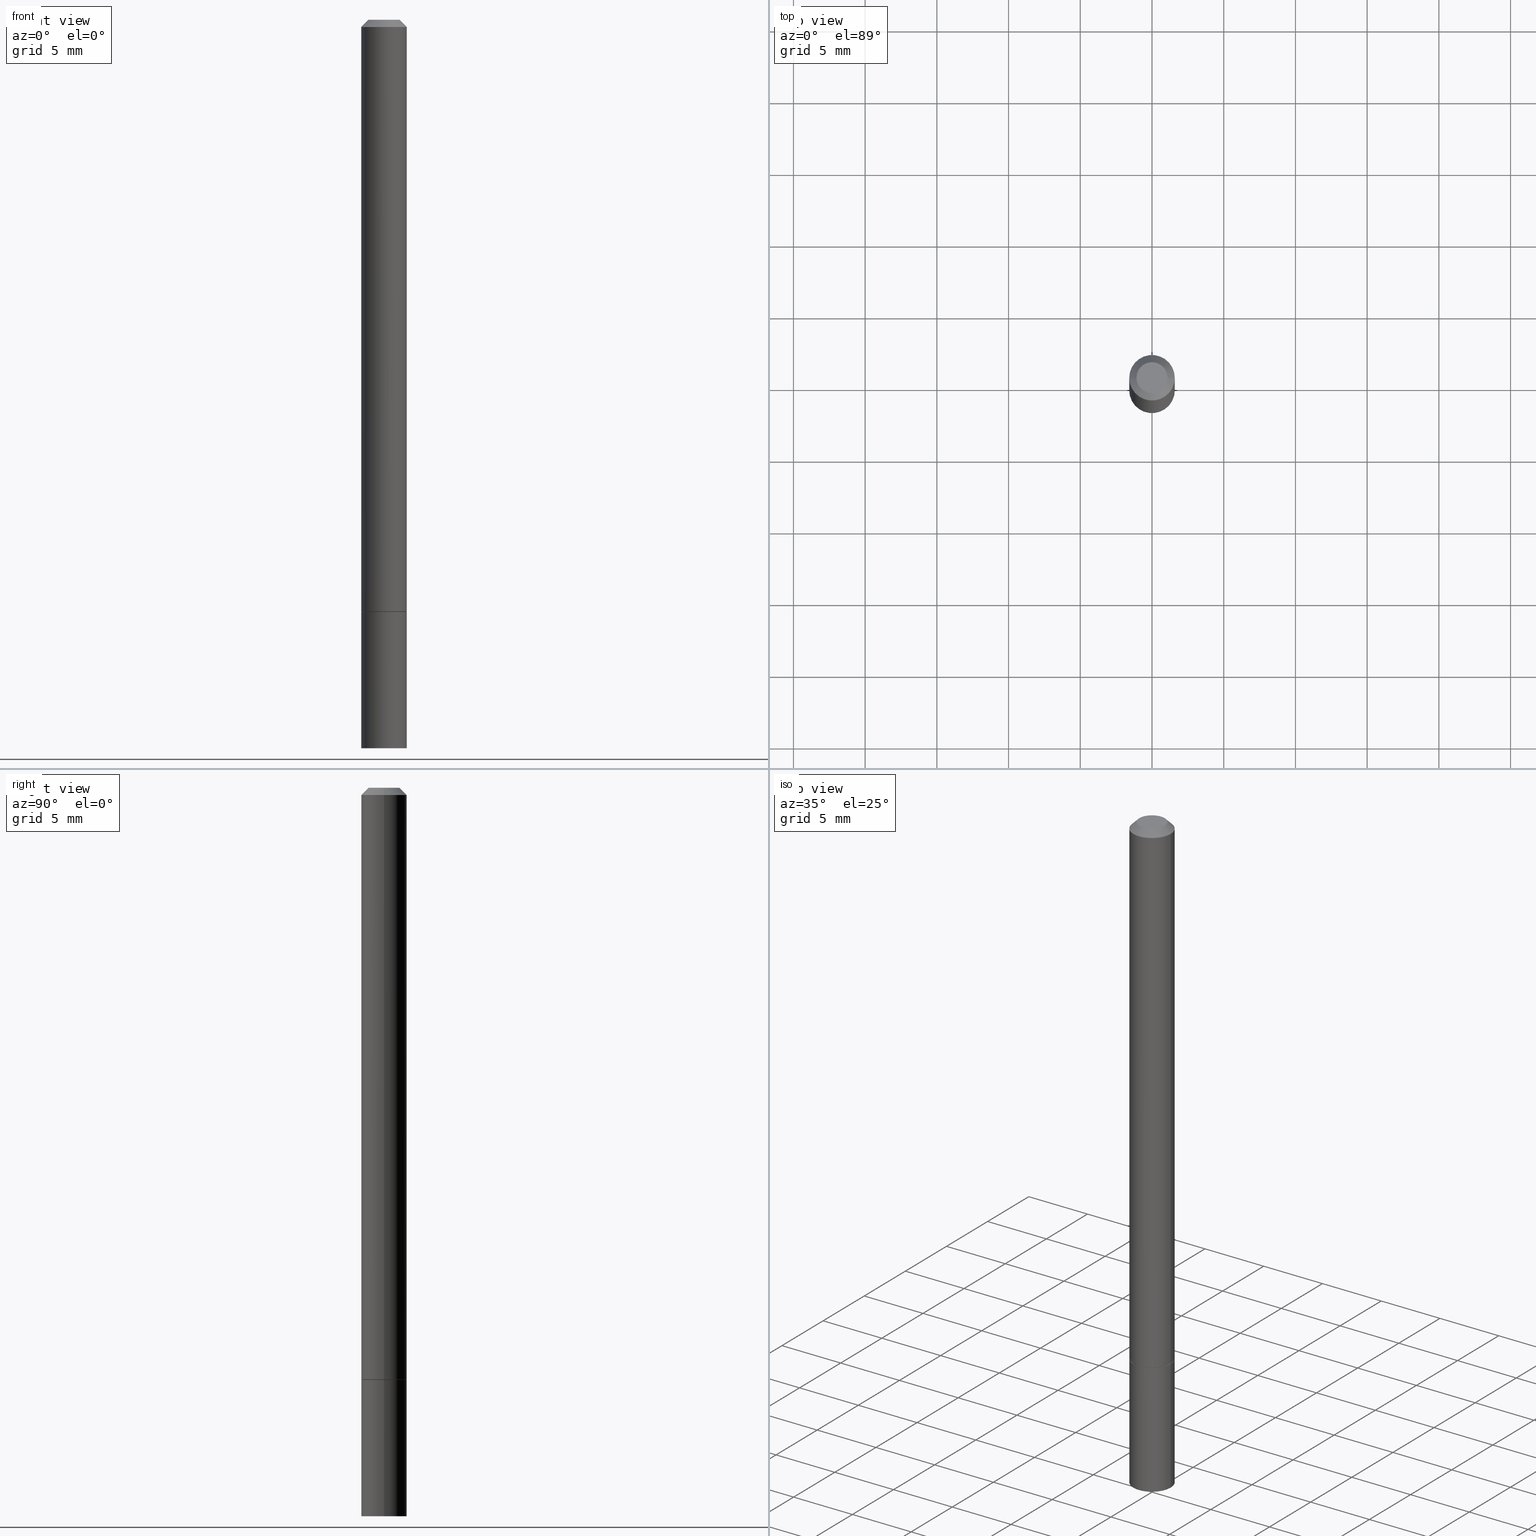
[diagram: canonical four-view strip — front | top / right | iso, engineering-drawing reading convention]
A machine part, canonical four-view strip (front | top / right | iso — engineering-drawing reading convention). The complete STEP part file that produces these views, byte-faithful:
ISO-10303-21;
HEADER;
FILE_DESCRIPTION (( 'STEP AP203' ),
    '1' );
FILE_NAME ('37394.STEP',
    '2024-02-27T21:23:27',
    ( '' ),
    ( '' ),
    'SwSTEP 2.0',
    'SolidWorks 2023',
    '' );
FILE_SCHEMA (( 'CONFIG_CONTROL_DESIGN' ));
ENDSEC;

DATA;
#1 = AXIS2_PLACEMENT_3D ( 'NONE', #223, #171, #360 ) ;
#2 = COORDINATED_UNIVERSAL_TIME_OFFSET ( 5, 0, .BEHIND. ) ;
#3 = ADVANCED_FACE ( 'NONE', ( #152 ), #305, .F. ) ;
#4 = APPROVAL_DATE_TIME ( #88, #82 ) ;
#5 = CIRCLE ( 'NONE', #261, 0.04249999999999988509 ) ;
#6 = VECTOR ( 'NONE', #101, 39.37007874015748143 ) ;
#7 =( LENGTH_UNIT ( ) NAMED_UNIT ( * ) SI_UNIT ( $, .METRE. ) );
#8 = ORIENTED_EDGE ( 'NONE', *, *, #237, .F. ) ;
#9 = VERTEX_POINT ( 'NONE', #109 ) ;
#10 = ORIENTED_EDGE ( 'NONE', *, *, #147, .T. ) ;
#11 = EDGE_LOOP ( 'NONE', ( #266, #349 ) ) ;
#12 = MANIFOLD_SOLID_BREP ( 'Body-Move/Copy2[2]', #173 ) ;
#13 = ORIENTED_EDGE ( 'NONE', *, *, #295, .F. ) ;
#14 = CC_DESIGN_PERSON_AND_ORGANIZATION_ASSIGNMENT ( #176, #285, ( #63 ) ) ;
#15 = CIRCLE ( 'NONE', #1, 0.06250000000000001388 ) ;
#16 = CARTESIAN_POINT ( 'NONE',  ( 2.967759138016655168E-16, 0.04249999999999988509, -1.590592381260843181E-16 ) ) ;
#17 = CARTESIAN_POINT ( 'NONE',  ( 0.06249999999999981265, -4.986107516375823445E-16, -0.02000000000000000736 ) ) ;
#18 = DIRECTION ( 'NONE',  ( -2.445468806185136597E-29, 3.491481338843145583E-15, 1.000000000000000000 ) ) ;
#19 = DIRECTION ( 'NONE',  ( 2.438088387897960049E-29, -3.491481338843145188E-15, -1.000000000000000000 ) ) ;
#20 = CARTESIAN_POINT ( 'NONE',  ( -0.06250000000000001388, -2.425908450678998508E-15, -1.623999999999999888 ) ) ;
#21 = PRODUCT_DEFINITION ( 'UNKNOWN', '', #87, #226 ) ;
#22 = CIRCLE ( 'NONE', #330, 0.06250000000000001388 ) ;
#23 = DIRECTION ( 'NONE',  ( 1.000000000000000000, -6.982962677686267499E-15, 4.879498284297456879E-29 ) ) ;
#24 = FACE_OUTER_BOUND ( 'NONE', #325, .T. ) ;
#25 = CARTESIAN_POINT ( 'NONE',  ( 3.973886810050846970E-29, -5.673657175620112213E-15, -1.625000000000000000 ) ) ;
#26 = DIRECTION ( 'NONE',  ( -2.445468806185136877E-29, 3.491481338843145188E-15, 1.000000000000000000 ) ) ;
#27 = EDGE_CURVE ( 'NONE', #121, #351, #70, .T. ) ;
#28 = PERSON_AND_ORGANIZATION_ROLE ( 'design_owner' ) ;
#29 = CIRCLE ( 'NONE', #202, 0.06249999999999981265 ) ;
#30 = APPROVAL_STATUS ( 'not_yet_approved' ) ;
#31 = APPROVAL_DATE_TIME ( #343, #74 ) ;
#32 = APPLICATION_CONTEXT ( 'configuration controlled 3d designs of mechanical parts and assemblies' ) ;
#33 = FACE_OUTER_BOUND ( 'NONE', #269, .T. ) ;
#34 = APPROVAL_ROLE ( '' ) ;
#35 = EDGE_LOOP ( 'NONE', ( #156, #94, #207, #153 ) ) ;
#36 = ORIENTED_EDGE ( 'NONE', *, *, #27, .F. ) ;
#37 = EDGE_LOOP ( 'NONE', ( #10, #97, #240, #158 ) ) ;
#38 = EDGE_CURVE ( 'NONE', #183, #96, #5, .T. ) ;
#39 = LOCAL_TIME ( 16, 23, 27.00000000000000000, #89 ) ;
#40 = ORIENTED_EDGE ( 'NONE', *, *, #71, .T. ) ;
#41 = ORIENTED_EDGE ( 'NONE', *, *, #341, .T. ) ;
#42 = FACE_OUTER_BOUND ( 'NONE', #244, .T. ) ;
#43 = FACE_OUTER_BOUND ( 'NONE', #37, .T. ) ;
#44 = ADVANCED_FACE ( 'NONE', ( #43 ), #328, .T. ) ;
#45 = EDGE_CURVE ( 'NONE', #96, #124, #221, .T. ) ;
#46 = DIRECTION ( 'NONE',  ( -2.445468806185136597E-29, 3.491481338843145583E-15, 1.000000000000000000 ) ) ;
#47 = DIRECTION ( 'NONE',  ( -2.445468806185136877E-29, 3.491481338843145188E-15, 1.000000000000000000 ) ) ;
#48 = FACE_OUTER_BOUND ( 'NONE', #99, .T. ) ;
#49 = CARTESIAN_POINT ( 'NONE',  ( 0.06250000000000001388, -4.364351673553918173E-16, 3.047610484872460571E-30 ) ) ;
#50 = CARTESIAN_POINT ( 'NONE',  ( 4.364351673554314576E-16, 0.06249999999999433786, -1.625000000000000222 ) ) ;
#51 = DIRECTION ( 'NONE',  ( 1.000000000000000000, -6.982962677686260400E-15, 0.000000000000000000 ) ) ;
#52 = CARTESIAN_POINT ( 'NONE',  ( 0.000000000000000000, 0.000000000000000000, 0.000000000000000000 ) ) ;
#53 = CARTESIAN_POINT ( 'NONE',  ( 0.06250000000000001388, -6.106600861636660086E-15, -1.623999999999999888 ) ) ;
#54 = CARTESIAN_POINT ( 'NONE',  ( -0.06249999999999981265, 3.666055405785273851E-16, -0.02000000000000000736 ) ) ;
#55 = APPLICATION_PROTOCOL_DEFINITION ( 'international standard', 'config_control_design', 1994, #32 ) ;
#56 = VECTOR ( 'NONE', #164, 39.37007874015748854 ) ;
#57 = CALENDAR_DATE ( 2024, 27, 2 ) ;
#58 = DATE_TIME_ROLE ( 'classification_date' ) ;
#59 = ADVANCED_FACE ( 'NONE', ( #48 ), #160, .T. ) ;
#60 = LENGTH_MEASURE_WITH_UNIT ( LENGTH_MEASURE( 0.02539999999999999897 ), #7 );
#61 = VECTOR ( 'NONE', #47, 39.37007874015748143 ) ;
#62 = ORIENTED_EDGE ( 'NONE', *, *, #200, .F. ) ;
#63 = SECURITY_CLASSIFICATION ( '', '', #199 ) ;
#64 = ORIENTED_EDGE ( 'NONE', *, *, #75, .F. ) ;
#65 = ORIENTED_EDGE ( 'NONE', *, *, #309, .F. ) ;
#66 = ORIENTED_EDGE ( 'NONE', *, *, #341, .F. ) ;
#67 = ADVANCED_FACE ( 'NONE', ( #80 ), #128, .F. ) ;
#68 = ORIENTED_EDGE ( 'NONE', *, *, #85, .T. ) ;
#69 = DIRECTION ( 'NONE',  ( 1.000000000000000000, -6.982962677686265922E-15, 4.876176775795935793E-29 ) ) ;
#70 = LINE ( 'NONE', #299, #56 ) ;
#71 = EDGE_CURVE ( 'NONE', #121, #265, #148, .T. ) ;
#72 = DIRECTION ( 'NONE',  ( 2.438088387897960049E-29, -3.491481338843145188E-15, -1.000000000000000000 ) ) ;
#73 = DIRECTION ( 'NONE',  ( -2.445468806185136597E-29, 3.491481338843145583E-15, 1.000000000000000000 ) ) ;
#74 = APPROVAL ( #30, 'UNSPECIFIED' ) ;
#75 = EDGE_CURVE ( 'NONE', #203, #9, #193, .T. ) ;
#76 = DIRECTION ( 'NONE',  ( -2.445468806185136597E-29, 3.491481338843145583E-15, 1.000000000000000000 ) ) ;
#77 = CARTESIAN_POINT ( 'NONE',  ( 0.06249999999999991673, -4.364351673553910778E-16, 3.047610484872455667E-30 ) ) ;
#78 = DIRECTION ( 'NONE',  ( -2.445468806185136597E-29, 3.491481338843145583E-15, 1.000000000000000000 ) ) ;
#79 = FACE_OUTER_BOUND ( 'NONE', #210, .T. ) ;
#80 = FACE_OUTER_BOUND ( 'NONE', #11, .T. ) ;
#81 = CARTESIAN_POINT ( 'NONE',  ( 3.973886810050846970E-29, -5.673657175620112213E-15, -1.625000000000000000 ) ) ;
#82 = APPROVAL ( #313, 'UNSPECIFIED' ) ;
#83 = DIRECTION ( 'NONE',  ( -2.445468806185136597E-29, 3.491481338843145583E-15, 1.000000000000000000 ) ) ;
#84 = PERSON_AND_ORGANIZATION_ROLE ( 'design_supplier' ) ;
#85 = EDGE_CURVE ( 'NONE', #351, #288, #338, .T. ) ;
#86 = APPLICATION_CONTEXT ( 'configuration controlled 3d designs of mechanical parts and assemblies' ) ;
#87 = PRODUCT_DEFINITION_FORMATION_WITH_SPECIFIED_SOURCE ( 'ANY', '', #311, .NOT_KNOWN. ) ;
#88 = DATE_AND_TIME ( #57, #104 ) ;
#89 = COORDINATED_UNIVERSAL_TIME_OFFSET ( 5, 0, .BEHIND. ) ;
#90 = EDGE_CURVE ( 'NONE', #96, #183, #197, .T. ) ;
#91 = AXIS2_PLACEMENT_3D ( 'NONE', #167, #300, #188 ) ;
#92 = VERTEX_POINT ( 'NONE', #301 ) ;
#93 = APPROVAL_PERSON_ORGANIZATION ( #175, #356, #34 ) ;
#94 = ORIENTED_EDGE ( 'NONE', *, *, #75, .T. ) ;
#95 = CARTESIAN_POINT ( 'NONE',  ( -0.06250000000000001388, -5.884220716803138678E-15, -1.625000000000000000 ) ) ;
#96 = VERTEX_POINT ( 'NONE', #274 ) ;
#97 = ORIENTED_EDGE ( 'NONE', *, *, #136, .T. ) ;
#98 = VECTOR ( 'NONE', #247, 39.37007874015748854 ) ;
#99 = EDGE_LOOP ( 'NONE', ( #271, #64 ) ) ;
#100 = DIRECTION ( 'NONE',  ( 1.000000000000000000, -6.982962677686260400E-15, 0.000000000000000000 ) ) ;
#101 = DIRECTION ( 'NONE',  ( -2.445468806185136877E-29, 3.491481338843145188E-15, 1.000000000000000000 ) ) ;
#102 = CARTESIAN_POINT ( 'NONE',  ( 3.973886810050846970E-29, -5.673657175620112213E-15, -1.625000000000000000 ) ) ;
#103 = VECTOR ( 'NONE', #364, 39.37007874015748143 ) ;
#104 = LOCAL_TIME ( 16, 23, 27.00000000000000000, #151 ) ;
#105 = DIRECTION ( 'NONE',  ( 2.438088387897960049E-29, -3.491481338843145188E-15, -1.000000000000000000 ) ) ;
#106 = DIRECTION ( 'NONE',  ( -1.000000000000000000, 6.982962677686266711E-15, 0.000000000000000000 ) ) ;
#107 = DIRECTION ( 'NONE',  ( -1.000000000000000000, 6.982962677686265922E-15, -4.876176775795935793E-29 ) ) ;
#108 = DIRECTION ( 'NONE',  ( -2.445468806185136597E-29, 3.491481338843145583E-15, 1.000000000000000000 ) ) ;
#109 = CARTESIAN_POINT ( 'NONE',  ( 0.06250000000000001388, -7.419397845041682046E-15, -2.000000000000000000 ) ) ;
#110 = DIRECTION ( 'NONE',  ( 2.445468806185136597E-29, -3.491481338843145583E-15, -1.000000000000000000 ) ) ;
#111 = CONICAL_SURFACE ( 'NONE', #348, 0.06150000000000001299, 0.7853981633974141952 ) ;
#112 = CARTESIAN_POINT ( 'NONE',  ( 0.000000000000000000, 0.000000000000000000, 0.000000000000000000 ) ) ;
#113 = PERSON_AND_ORGANIZATION_ROLE ( 'creator' ) ;
#114 = VECTOR ( 'NONE', #298, 39.37007874015748143 ) ;
#115 = LOCAL_TIME ( 16, 23, 27.00000000000000000, #345 ) ;
#116 = CALENDAR_DATE ( 2024, 27, 2 ) ;
#117 = MECHANICAL_CONTEXT ( 'NONE', #86, 'mechanical' ) ;
#118 = DATE_AND_TIME ( #268, #115 ) ;
#119 = ORIENTED_EDGE ( 'NONE', *, *, #38, .F. ) ;
#120 = LOCAL_TIME ( 16, 23, 27.00000000000000000, #196 ) ;
#121 = VERTEX_POINT ( 'NONE', #362 ) ;
#122 = APPROVAL_DATE_TIME ( #118, #356 ) ;
#123 = ORIENTED_EDGE ( 'NONE', *, *, #312, .F. ) ;
#124 = VERTEX_POINT ( 'NONE', #17 ) ;
#125 = ORIENTED_EDGE ( 'NONE', *, *, #204, .T. ) ;
#126 = CC_DESIGN_PERSON_AND_ORGANIZATION_ASSIGNMENT ( #146, #227, ( #87 ) ) ;
#127 = ADVANCED_FACE ( 'NONE', ( #333 ), #130, .T. ) ;
#128 = PLANE ( 'NONE',  #303 ) ;
#129 = CYLINDRICAL_SURFACE ( 'NONE', #217, 0.06250000000000001388 ) ;
#130 = CYLINDRICAL_SURFACE ( 'NONE', #249, 0.06249999999999991673 ) ;
#131 = CARTESIAN_POINT ( 'NONE',  ( 4.890937612370274910E-31, -6.982962677686295307E-17, -0.02000000000000000736 ) ) ;
#132 = DIRECTION ( 'NONE',  ( 1.000000000000000000, -6.982962677686261189E-15, 0.000000000000000000 ) ) ;
#133 = DIRECTION ( 'NONE',  ( 1.000000000000000000, -6.982962677686260400E-15, 0.000000000000000000 ) ) ;
#134 = AXIS2_PLACEMENT_3D ( 'NONE', #302, #110, #106 ) ;
#135 = CC_DESIGN_APPROVAL ( #356, ( #63 ) ) ;
#136 = EDGE_CURVE ( 'NONE', #203, #181, #257, .T. ) ;
#137 = DIRECTION ( 'NONE',  ( -1.000000000000000000, 6.982962677686265922E-15, -4.876176775795935793E-29 ) ) ;
#138 = DIRECTION ( 'NONE',  ( 1.000000000000000000, -6.982962677686267499E-15, 4.876176775795935793E-29 ) ) ;
#139 = DIRECTION ( 'NONE',  ( 1.000000000000000000, -6.982962677686267499E-15, 4.879498284297456879E-29 ) ) ;
#140 = LINE ( 'NONE', #222, #61 ) ;
#141 = APPROVAL_ROLE ( '' ) ;
#142 = AXIS2_PLACEMENT_3D ( 'NONE', #245, #189, #51 ) ;
#143 = CONICAL_SURFACE ( 'NONE', #134, 0.06249999999999981265, 0.7853981633974467247 ) ;
#144 = PERSON_AND_ORGANIZATION ( #357, #267 ) ;
#145 = DATE_TIME_ROLE ( 'creation_date' ) ;
#146 = PERSON_AND_ORGANIZATION ( #357, #267 ) ;
#147 = EDGE_CURVE ( 'NONE', #9, #203, #22, .T. ) ;
#148 = CIRCLE ( 'NONE', #354, 0.06150000000000001299 ) ;
#149 = ADVANCED_FACE ( 'NONE', ( #33 ), #326, .F. ) ;
#150 = VECTOR ( 'NONE', #366, 39.37007874015748143 ) ;
#151 = COORDINATED_UNIVERSAL_TIME_OFFSET ( 5, 0, .BEHIND. ) ;
#152 = FACE_OUTER_BOUND ( 'NONE', #179, .T. ) ;
#153 = ORIENTED_EDGE ( 'NONE', *, *, #195, .F. ) ;
#154 = AXIS2_PLACEMENT_3D ( 'NONE', #276, #72, #273 ) ;
#155 = APPROVAL_PERSON_ORGANIZATION ( #144, #82, #141 ) ;
#156 = ORIENTED_EDGE ( 'NONE', *, *, #136, .F. ) ;
#157 = ORIENTED_EDGE ( 'NONE', *, *, #270, .T. ) ;
#158 = ORIENTED_EDGE ( 'NONE', *, *, #239, .F. ) ;
#159 = ADVANCED_BREP_SHAPE_REPRESENTATION ( '37394', ( #258, #12, #283 ), #235 ) ;
#160 = PLANE ( 'NONE',  #154 ) ;
#161 = AXIS2_PLACEMENT_3D ( 'NONE', #219, #169, #139 ) ;
#162 = APPROVAL_PERSON_ORGANIZATION ( #228, #74, #284 ) ;
#163 = DIRECTION ( 'NONE',  ( -2.445468806185136597E-29, 3.491481338843145583E-15, 1.000000000000000000 ) ) ;
#164 = DIRECTION ( 'NONE',  ( -0.7071067811865232589, 7.493145998870265808E-15, 0.7071067811865715536 ) ) ;
#165 = DIRECTION ( 'NONE',  ( -2.445468806185136597E-29, 3.491481338843145583E-15, 1.000000000000000000 ) ) ;
#166 = DIRECTION ( 'NONE',  ( 1.000000000000000000, -6.982962677686266711E-15, 4.876176775795935793E-29 ) ) ;
#167 = CARTESIAN_POINT ( 'NONE',  ( 4.890937612370274910E-31, -6.982962677686295307E-17, -0.02000000000000000736 ) ) ;
#168 = AXIS2_PLACEMENT_3D ( 'NONE', #81, #83, #192 ) ;
#169 = DIRECTION ( 'NONE',  ( -2.445468806185136597E-29, 3.491481338843145583E-15, 1.000000000000000000 ) ) ;
#170 = LINE ( 'NONE', #214, #150 ) ;
#171 = DIRECTION ( 'NONE',  ( -2.445468806185136597E-29, 3.491481338843145583E-15, 1.000000000000000000 ) ) ;
#172 = PERSON_AND_ORGANIZATION ( #357, #267 ) ;
#173 = CLOSED_SHELL ( 'NONE', ( #346, #234, #186, #344, #127, #252, #149, #67 ) ) ;
#174 = DATE_AND_TIME ( #255, #39 ) ;
#175 = PERSON_AND_ORGANIZATION ( #357, #267 ) ;
#176 = PERSON_AND_ORGANIZATION ( #357, #267 ) ;
#177 = EDGE_LOOP ( 'NONE', ( #36, #40, #355, #272 ) ) ;
#178 = DIRECTION ( 'NONE',  ( -2.445468806185136597E-29, 3.491481338843145583E-15, 1.000000000000000000 ) ) ;
#179 = EDGE_LOOP ( 'NONE', ( #157, #290 ) ) ;
#180 = CC_DESIGN_PERSON_AND_ORGANIZATION_ASSIGNMENT ( #310, #28, ( #311 ) ) ;
#181 = VERTEX_POINT ( 'NONE', #95 ) ;
#182 = CIRCLE ( 'NONE', #229, 0.06250000000000001388 ) ;
#183 = VERTEX_POINT ( 'NONE', #185 ) ;
#184 = ORIENTED_EDGE ( 'NONE', *, *, #45, .T. ) ;
#185 = CARTESIAN_POINT ( 'NONE',  ( -0.04249999999999988509, 3.316907271900964263E-16, -2.134256245050425658E-17 ) ) ;
#186 = ADVANCED_FACE ( 'NONE', ( #42 ), #143, .T. ) ;
#187 = CIRCLE ( 'NONE', #168, 0.06250000000000001388 ) ;
#188 = DIRECTION ( 'NONE',  ( -1.000000000000000000, 6.982962677686266711E-15, 0.000000000000000000 ) ) ;
#189 = DIRECTION ( 'NONE',  ( -2.445468806185136597E-29, 3.491481338843145583E-15, 1.000000000000000000 ) ) ;
#190 = DIRECTION ( 'NONE',  ( 1.000000000000000000, -6.982962677686261189E-15, 0.000000000000000000 ) ) ;
#191 = DIRECTION ( 'NONE',  ( -2.445468806185136597E-29, 3.491481338843145583E-15, 1.000000000000000000 ) ) ;
#192 = DIRECTION ( 'NONE',  ( 1.000000000000000000, -6.982962677686261189E-15, 0.000000000000000000 ) ) ;
#193 = CIRCLE ( 'NONE', #296, 0.06250000000000001388 ) ;
#194 = FACE_OUTER_BOUND ( 'NONE', #177, .T. ) ;
#195 = EDGE_CURVE ( 'NONE', #181, #92, #187, .T. ) ;
#196 = COORDINATED_UNIVERSAL_TIME_OFFSET ( 5, 0, .BEHIND. ) ;
#197 = CIRCLE ( 'NONE', #161, 0.04249999999999988509 ) ;
#198 = LOCAL_TIME ( 16, 23, 27.00000000000000000, #2 ) ;
#199 = SECURITY_CLASSIFICATION_LEVEL ( 'unclassified' ) ;
#200 = EDGE_CURVE ( 'NONE', #205, #124, #361, .T. ) ;
#201 = DIRECTION ( 'NONE',  ( 0.000000000000000000, 0.000000000000000000, 1.000000000000000000 ) ) ;
#202 = AXIS2_PLACEMENT_3D ( 'NONE', #331, #73, #297 ) ;
#203 = VERTEX_POINT ( 'NONE', #339 ) ;
#204 = EDGE_CURVE ( 'NONE', #288, #124, #365, .T. ) ;
#205 = VERTEX_POINT ( 'NONE', #54 ) ;
#206 = CARTESIAN_POINT ( 'NONE',  ( -0.06250000000000001388, 4.440892098500627148E-16, -3.074334431409317165E-30 ) ) ;
#207 = ORIENTED_EDGE ( 'NONE', *, *, #239, .T. ) ;
#208 = CIRCLE ( 'NONE', #142, 0.06150000000000001299 ) ;
#209 = CC_DESIGN_APPROVAL ( #74, ( #87 ) ) ;
#210 = EDGE_LOOP ( 'NONE', ( #233, #119, #347, #236 ) ) ;
#211 = DIRECTION ( 'NONE',  ( 1.000000000000000000, -6.982962677686261189E-15, 0.000000000000000000 ) ) ;
#212 = EDGE_LOOP ( 'NONE', ( #66, #68, #125, #62 ) ) ;
#213 = DIRECTION ( 'NONE',  ( -2.445468806185136597E-29, 3.491481338843145583E-15, 1.000000000000000000 ) ) ;
#214 = CARTESIAN_POINT ( 'NONE',  ( -0.06249999999999981265, 3.666055405785273851E-16, -0.02000000000000000736 ) ) ;
#215 = AXIS2_PLACEMENT_3D ( 'NONE', #50, #105, #107 ) ;
#216 = CARTESIAN_POINT ( 'NONE',  ( 4.890937612370273194E-29, -6.982962677686291165E-15, -2.000000000000000000 ) ) ;
#217 = AXIS2_PLACEMENT_3D ( 'NONE', #363, #218, #138 ) ;
#218 = DIRECTION ( 'NONE',  ( -2.445468806185136597E-29, 3.491481338843145583E-15, 1.000000000000000000 ) ) ;
#219 = CARTESIAN_POINT ( 'NONE',  ( 5.219257071676098903E-46, -7.451715851902235727E-32, -2.134256245050205639E-17 ) ) ;
#220 = CARTESIAN_POINT ( 'NONE',  ( 0.000000000000000000, 0.000000000000000000, 0.000000000000000000 ) ) ;
#221 = LINE ( 'NONE', #336, #103 ) ;
#222 = CARTESIAN_POINT ( 'NONE',  ( -0.06249999999999991673, 4.440892098500620245E-16, -3.074334431409311910E-30 ) ) ;
#223 = CARTESIAN_POINT ( 'NONE',  ( 3.971441341244661927E-29, -5.670165694281268417E-15, -1.623999999999999888 ) ) ;
#224 = CARTESIAN_POINT ( 'NONE',  ( 4.890937612370273194E-29, -6.982962677686291165E-15, -2.000000000000000000 ) ) ;
#225 = APPLICATION_PROTOCOL_DEFINITION ( 'international standard', 'config_control_design', 1994, #86 ) ;
#226 = DESIGN_CONTEXT ( 'detailed design', #32, 'design' ) ;
#227 = PERSON_AND_ORGANIZATION_ROLE ( 'creator' ) ;
#228 = PERSON_AND_ORGANIZATION ( #357, #267 ) ;
#229 = AXIS2_PLACEMENT_3D ( 'NONE', #329, #108, #277 ) ;
#230 = CC_DESIGN_SECURITY_CLASSIFICATION ( #63, ( #87 ) ) ;
#231 = APPROVAL_STATUS ( 'not_yet_approved' ) ;
#232 =( NAMED_UNIT ( * ) SI_UNIT ( $, .STERADIAN. ) SOLID_ANGLE_UNIT ( ) );
#233 = ORIENTED_EDGE ( 'NONE', *, *, #45, .F. ) ;
#234 = ADVANCED_FACE ( 'NONE', ( #275 ), #337, .T. ) ;
#235 =( GEOMETRIC_REPRESENTATION_CONTEXT ( 3 ) GLOBAL_UNCERTAINTY_ASSIGNED_CONTEXT ( ( #317 ) ) GLOBAL_UNIT_ASSIGNED_CONTEXT ( ( #340, #259, #232 ) ) REPRESENTATION_CONTEXT ( 'NONE', 'WORKASPACE' ) );
#236 = ORIENTED_EDGE ( 'NONE', *, *, #200, .T. ) ;
#237 = EDGE_CURVE ( 'NONE', #265, #288, #307, .T. ) ;
#238 = ORIENTED_EDGE ( 'NONE', *, *, #27, .T. ) ;
#239 = EDGE_CURVE ( 'NONE', #9, #92, #250, .T. ) ;
#240 = ORIENTED_EDGE ( 'NONE', *, *, #270, .F. ) ;
#241 = CC_DESIGN_PERSON_AND_ORGANIZATION_ASSIGNMENT ( #342, #84, ( #87 ) ) ;
#242 = CLOSED_SHELL ( 'NONE', ( #44, #59, #3, #264 ) ) ;
#243 = VECTOR ( 'NONE', #26, 39.37007874015748143 ) ;
#244 = EDGE_LOOP ( 'NONE', ( #353, #184, #289, #13 ) ) ;
#245 = CARTESIAN_POINT ( 'NONE',  ( 3.973886810050846970E-29, -5.673657175620112213E-15, -1.625000000000000000 ) ) ;
#246 = CARTESIAN_POINT ( 'NONE',  ( 0.000000000000000000, 0.000000000000000000, 0.000000000000000000 ) ) ;
#247 = DIRECTION ( 'NONE',  ( 0.7071067811865232589, -2.468850131082003836E-15, 0.7071067811865715536 ) ) ;
#248 = CARTESIAN_POINT ( 'NONE',  ( 3.971441341244661927E-29, -5.670165694281268417E-15, -1.623999999999999888 ) ) ;
#249 = AXIS2_PLACEMENT_3D ( 'NONE', #246, #78, #166 ) ;
#250 = LINE ( 'NONE', #49, #243 ) ;
#251 = DIRECTION ( 'NONE',  ( -2.445468806185136597E-29, 3.491481338843145583E-15, 1.000000000000000000 ) ) ;
#252 = ADVANCED_FACE ( 'NONE', ( #194 ), #306, .T. ) ;
#253 = EDGE_CURVE ( 'NONE', #288, #351, #15, .T. ) ;
#254 = CARTESIAN_POINT ( 'NONE',  ( 3.973886810050846970E-29, -5.673657175620112213E-15, -1.625000000000000000 ) ) ;
#255 = CALENDAR_DATE ( 2024, 27, 2 ) ;
#256 = AXIS2_PLACEMENT_3D ( 'NONE', #220, #18, #282 ) ;
#257 = LINE ( 'NONE', #206, #114 ) ;
#258 = MANIFOLD_SOLID_BREP ( 'Body-Move/Copy2[1]', #242 ) ;
#259 =( NAMED_UNIT ( * ) PLANE_ANGLE_UNIT ( ) SI_UNIT ( $, .RADIAN. ) );
#260 = CC_DESIGN_DATE_AND_TIME_ASSIGNMENT ( #316, #58, ( #63 ) ) ;
#261 = AXIS2_PLACEMENT_3D ( 'NONE', #294, #213, #23 ) ;
#262 = AXIS2_PLACEMENT_3D ( 'NONE', #102, #191, #359 ) ;
#263 = CALENDAR_DATE ( 2024, 27, 2 ) ;
#264 = ADVANCED_FACE ( 'NONE', ( #279 ), #129, .T. ) ;
#265 = VERTEX_POINT ( 'NONE', #334 ) ;
#266 = ORIENTED_EDGE ( 'NONE', *, *, #38, .T. ) ;
#267 = ORGANIZATION ( 'UNSPECIFIED', 'UNSPECIFIED', '' ) ;
#268 = CALENDAR_DATE ( 2024, 27, 2 ) ;
#269 = EDGE_LOOP ( 'NONE', ( #65, #293 ) ) ;
#270 = EDGE_CURVE ( 'NONE', #92, #181, #182, .T. ) ;
#271 = ORIENTED_EDGE ( 'NONE', *, *, #147, .F. ) ;
#272 = ORIENTED_EDGE ( 'NONE', *, *, #85, .F. ) ;
#273 = DIRECTION ( 'NONE',  ( -1.000000000000000000, 6.982962677686265922E-15, -4.876176775795935793E-29 ) ) ;
#274 = CARTESIAN_POINT ( 'NONE',  ( 0.04249999999999988509, -3.950909582714358571E-16, -2.134256245049963743E-17 ) ) ;
#275 = FACE_OUTER_BOUND ( 'NONE', #323, .T. ) ;
#276 = CARTESIAN_POINT ( 'NONE',  ( 4.364351673554406281E-16, 0.06249999999999303335, -2.000000000000000444 ) ) ;
#277 = DIRECTION ( 'NONE',  ( 1.000000000000000000, -6.982962677686261189E-15, 0.000000000000000000 ) ) ;
#278 = AXIS2_PLACEMENT_3D ( 'NONE', #248, #163, #190 ) ;
#279 = FACE_OUTER_BOUND ( 'NONE', #35, .T. ) ;
#280 = DIRECTION ( 'NONE',  ( 1.000000000000000000, -6.982962677686267499E-15, 4.876176775795935793E-29 ) ) ;
#281 = DIRECTION ( 'NONE',  ( 1.000000000000000000, -6.982962677686266711E-15, 0.000000000000000000 ) ) ;
#282 = DIRECTION ( 'NONE',  ( 1.000000000000000000, -6.982962677686266711E-15, 4.876176775795935793E-29 ) ) ;
#283 = AXIS2_PLACEMENT_3D ( 'NONE', #112, #201, #318 ) ;
#284 = APPROVAL_ROLE ( '' ) ;
#285 = PERSON_AND_ORGANIZATION_ROLE ( 'classification_officer' ) ;
#286 = ORIENTED_EDGE ( 'NONE', *, *, #253, .T. ) ;
#287 = AXIS2_PLACEMENT_3D ( 'NONE', #131, #165, #281 ) ;
#288 = VERTEX_POINT ( 'NONE', #53 ) ;
#289 = ORIENTED_EDGE ( 'NONE', *, *, #312, .T. ) ;
#290 = ORIENTED_EDGE ( 'NONE', *, *, #195, .T. ) ;
#291 = PRODUCT_RELATED_PRODUCT_CATEGORY ( 'detail', '', ( #311 ) ) ;
#292 = ORIENTED_EDGE ( 'NONE', *, *, #253, .F. ) ;
#293 = ORIENTED_EDGE ( 'NONE', *, *, #71, .F. ) ;
#294 = CARTESIAN_POINT ( 'NONE',  ( 5.219257071676098903E-46, -7.451715851902235727E-32, -2.134256245050205639E-17 ) ) ;
#295 = EDGE_CURVE ( 'NONE', #183, #205, #170, .T. ) ;
#296 = AXIS2_PLACEMENT_3D ( 'NONE', #216, #46, #132 ) ;
#297 = DIRECTION ( 'NONE',  ( 1.000000000000000000, -6.982962677686266711E-15, 0.000000000000000000 ) ) ;
#298 = DIRECTION ( 'NONE',  ( -2.445468806185136877E-29, 3.491481338843145188E-15, 1.000000000000000000 ) ) ;
#299 = CARTESIAN_POINT ( 'NONE',  ( -0.06150000000000001299, -5.236673393127650605E-15, -1.625000000000000000 ) ) ;
#300 = DIRECTION ( 'NONE',  ( 2.445468806185136597E-29, -3.491481338843145583E-15, -1.000000000000000000 ) ) ;
#301 = CARTESIAN_POINT ( 'NONE',  ( 0.06250000000000001388, -6.110092342975503093E-15, -1.625000000000000000 ) ) ;
#302 = CARTESIAN_POINT ( 'NONE',  ( 4.890937612370274910E-31, -6.982962677686295307E-17, -0.02000000000000000736 ) ) ;
#303 = AXIS2_PLACEMENT_3D ( 'NONE', #16, #19, #137 ) ;
#304 = CC_DESIGN_PERSON_AND_ORGANIZATION_ASSIGNMENT ( #172, #113, ( #21 ) ) ;
#305 = PLANE ( 'NONE',  #215 ) ;
#306 = CONICAL_SURFACE ( 'NONE', #262, 0.06150000000000001299, 0.7853981633974141952 ) ;
#307 = LINE ( 'NONE', #308, #98 ) ;
#308 = CARTESIAN_POINT ( 'NONE',  ( 0.06150000000000001299, -6.103109380297817079E-15, -1.625000000000000000 ) ) ;
#309 = EDGE_CURVE ( 'NONE', #265, #121, #208, .T. ) ;
#310 = PERSON_AND_ORGANIZATION ( #357, #267 ) ;
#311 = PRODUCT ( '37394', '37394', '', ( #117 ) ) ;
#312 = EDGE_CURVE ( 'NONE', #124, #205, #29, .T. ) ;
#313 = APPROVAL_STATUS ( 'not_yet_approved' ) ;
#314 = AXIS2_PLACEMENT_3D ( 'NONE', #52, #76, #280 ) ;
#315 = CC_DESIGN_APPROVAL ( #82, ( #21 ) ) ;
#316 = DATE_AND_TIME ( #116, #120 ) ;
#317 = UNCERTAINTY_MEASURE_WITH_UNIT (LENGTH_MEASURE( 1.000000000000000082E-05 ), #340, 'distance_accuracy_value', 'NONE');
#318 = DIRECTION ( 'NONE',  ( 1.000000000000000000, 0.000000000000000000, 0.000000000000000000 ) ) ;
#319 = CONICAL_SURFACE ( 'NONE', #91, 0.06249999999999981265, 0.7853981633974467247 ) ;
#320 = ORIENTED_EDGE ( 'NONE', *, *, #204, .F. ) ;
#321 = CARTESIAN_POINT ( 'NONE',  ( 3.973886810050846970E-29, -5.673657175620112213E-15, -1.625000000000000000 ) ) ;
#322 = ORIENTED_EDGE ( 'NONE', *, *, #309, .T. ) ;
#323 = EDGE_LOOP ( 'NONE', ( #286, #41, #123, #320 ) ) ;
#324 = AXIS2_PLACEMENT_3D ( 'NONE', #321, #350, #69 ) ;
#325 = EDGE_LOOP ( 'NONE', ( #322, #238, #292, #8 ) ) ;
#326 = PLANE ( 'NONE',  #324 ) ;
#327 = PRODUCT_DEFINITION_SHAPE ( 'NONE', 'NONE',  #21 ) ;
#328 = CYLINDRICAL_SURFACE ( 'NONE', #314, 0.06250000000000001388 ) ;
#329 = CARTESIAN_POINT ( 'NONE',  ( 3.973886810050846970E-29, -5.673657175620112213E-15, -1.625000000000000000 ) ) ;
#330 = AXIS2_PLACEMENT_3D ( 'NONE', #224, #178, #211 ) ;
#331 = CARTESIAN_POINT ( 'NONE',  ( 4.890937612370274910E-31, -6.982962677686295307E-17, -0.02000000000000000736 ) ) ;
#332 = DIMENSIONAL_EXPONENTS ( 1.000000000000000000, 0.000000000000000000, 0.000000000000000000, 0.000000000000000000, 0.000000000000000000, 0.000000000000000000, 0.000000000000000000 ) ;
#333 = FACE_OUTER_BOUND ( 'NONE', #212, .T. ) ;
#334 = CARTESIAN_POINT ( 'NONE',  ( 0.06150000000000001299, -6.103109380297817079E-15, -1.625000000000000000 ) ) ;
#335 = CC_DESIGN_DATE_AND_TIME_ASSIGNMENT ( #174, #145, ( #21 ) ) ;
#336 = CARTESIAN_POINT ( 'NONE',  ( 0.06249999999999981265, -4.986107516375823445E-16, -0.02000000000000000736 ) ) ;
#337 = CYLINDRICAL_SURFACE ( 'NONE', #256, 0.06249999999999991673 ) ;
#338 = CIRCLE ( 'NONE', #278, 0.06250000000000001388 ) ;
#339 = CARTESIAN_POINT ( 'NONE',  ( -0.06250000000000001388, -5.884220716803138678E-15, -2.000000000000000000 ) ) ;
#340 =( CONVERSION_BASED_UNIT ( 'INCH', #60 ) LENGTH_UNIT ( ) NAMED_UNIT ( #332 ) );
#341 = EDGE_CURVE ( 'NONE', #351, #205, #140, .T. ) ;
#342 = PERSON_AND_ORGANIZATION ( #357, #267 ) ;
#343 = DATE_AND_TIME ( #263, #198 ) ;
#344 = ADVANCED_FACE ( 'NONE', ( #79 ), #319, .T. ) ;
#345 = COORDINATED_UNIVERSAL_TIME_OFFSET ( 5, 0, .BEHIND. ) ;
#346 = ADVANCED_FACE ( 'NONE', ( #24 ), #111, .T. ) ;
#347 = ORIENTED_EDGE ( 'NONE', *, *, #295, .T. ) ;
#348 = AXIS2_PLACEMENT_3D ( 'NONE', #254, #251, #133 ) ;
#349 = ORIENTED_EDGE ( 'NONE', *, *, #90, .T. ) ;
#350 = DIRECTION ( 'NONE',  ( -2.438088387897960049E-29, 3.491481338843145188E-15, 1.000000000000000000 ) ) ;
#351 = VERTEX_POINT ( 'NONE', #20 ) ;
#352 = SHAPE_DEFINITION_REPRESENTATION ( #327, #159 ) ;
#353 = ORIENTED_EDGE ( 'NONE', *, *, #90, .F. ) ;
#354 = AXIS2_PLACEMENT_3D ( 'NONE', #25, #358, #100 ) ;
#355 = ORIENTED_EDGE ( 'NONE', *, *, #237, .T. ) ;
#356 = APPROVAL ( #231, 'UNSPECIFIED' ) ;
#357 = PERSON ( 'UNSPECIFIED', 'UNSPECIFIED', 'UNSPECIFIED', ('UNSPECIFIED'), ('UNSPECIFIED'), ('UNSPECIFIED') ) ;
#358 = DIRECTION ( 'NONE',  ( -2.445468806185136597E-29, 3.491481338843145583E-15, 1.000000000000000000 ) ) ;
#359 = DIRECTION ( 'NONE',  ( 1.000000000000000000, -6.982962677686260400E-15, 0.000000000000000000 ) ) ;
#360 = DIRECTION ( 'NONE',  ( 1.000000000000000000, -6.982962677686261189E-15, 0.000000000000000000 ) ) ;
#361 = CIRCLE ( 'NONE', #287, 0.06249999999999981265 ) ;
#362 = CARTESIAN_POINT ( 'NONE',  ( -0.06150000000000001299, -5.231374938779427414E-15, -1.625000000000000000 ) ) ;
#363 = CARTESIAN_POINT ( 'NONE',  ( 0.000000000000000000, 0.000000000000000000, 0.000000000000000000 ) ) ;
#364 = DIRECTION ( 'NONE',  ( 0.7071067811865464625, -7.319954787623252890E-15, -0.7071067811865486830 ) ) ;
#365 = LINE ( 'NONE', #77, #6 ) ;
#366 = DIRECTION ( 'NONE',  ( -0.7071067811865464625, 2.468850131082245228E-15, -0.7071067811865486830 ) ) ;
ENDSEC;
END-ISO-10303-21;
